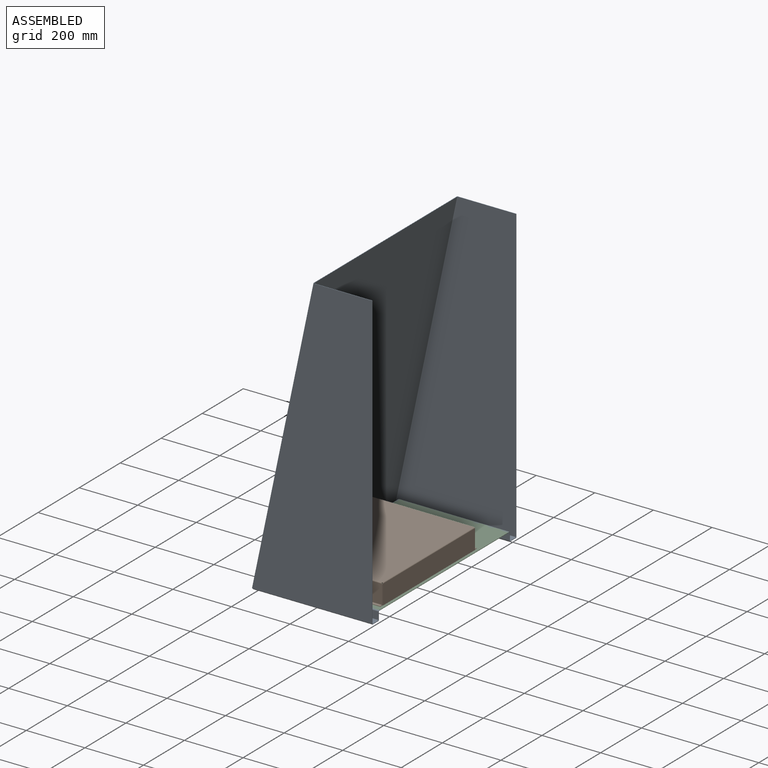
[diagram: assembled view]
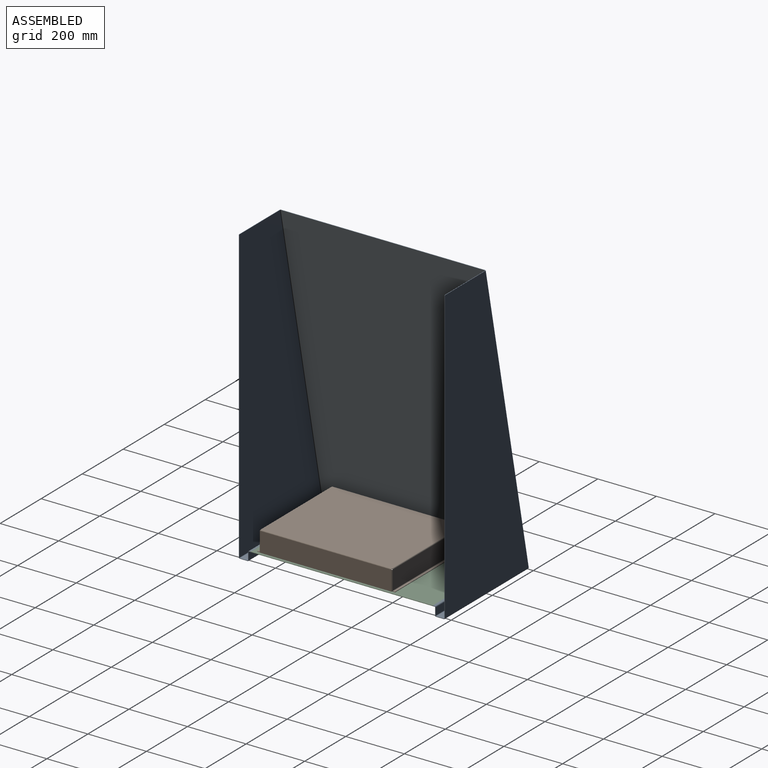
[diagram: assembled view, second angle]
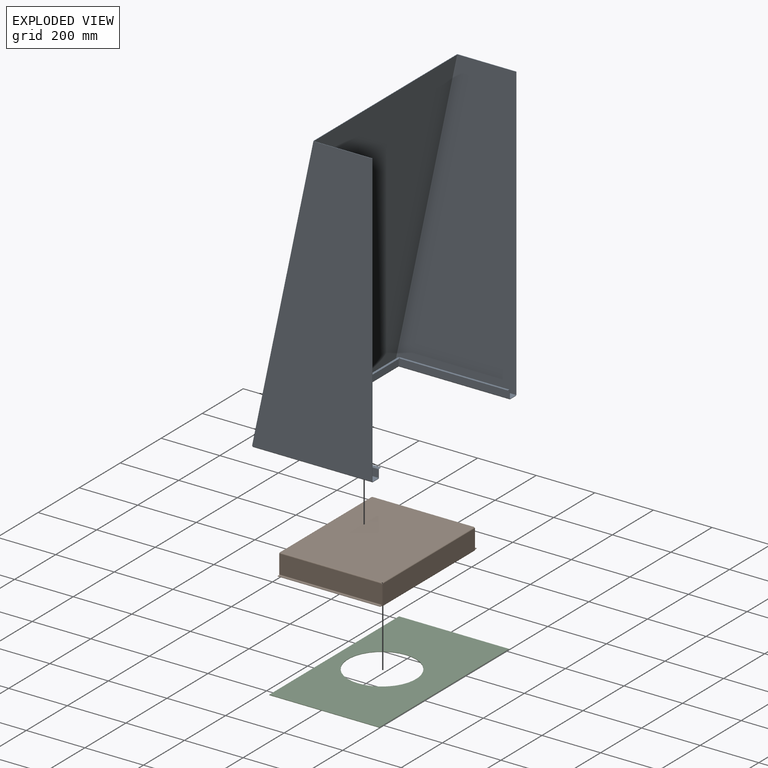
[diagram: exploded view]
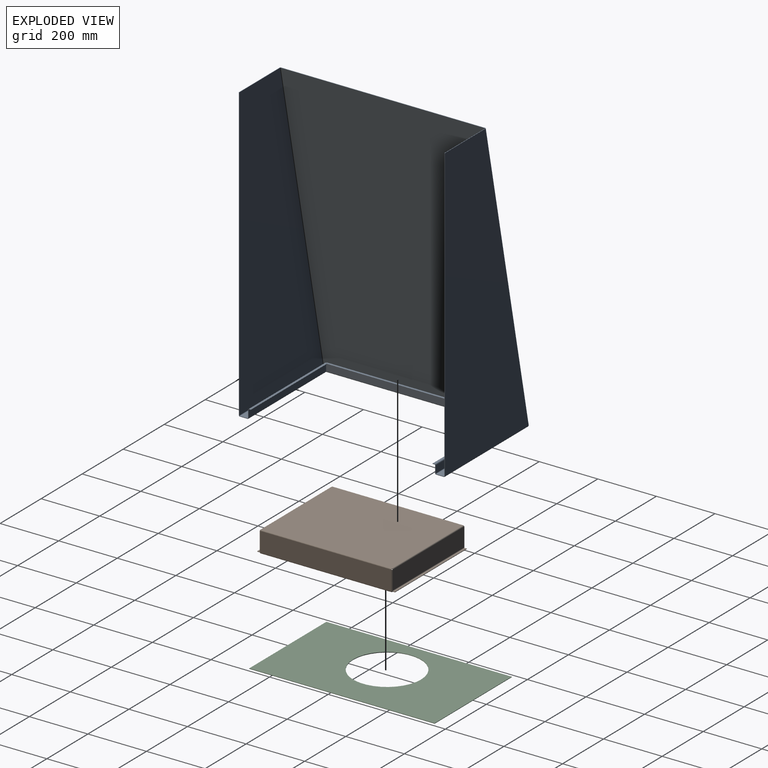
[diagram: exploded view, second angle]
ASSEMBLY  parts=3 mates=2
PART A: 110 faces, bbox 411.2x703.2x1000.4 mm
  f0: plane 1.6x0.07mm, normal (-0.98,0,0.21), area 0.1mm2, adj f1,f2,f3,f48
  f1: plane 1.6x0.34mm, normal (0,0,-1), area 0.5mm2, adj f0,f2,f3,f107
  f2: plane 996.55x408.03mm, normal (0,1,0), area 302150.1mm2, adj f0,f1,f4,f5,f50,f108
  f3: plane 996.55x408.03mm, normal (0,-1,0), area 302150.1mm2, adj f0,f1,f4,f5,f51,f109
  f4: plane 198.37x1.6mm, normal (0,0,1), area 317.4mm2, adj f2,f3,f5,f49
  f5: plane 996.55x1.6mm, normal (1,0,0), area 1594.5mm2, adj f2,f3,f4,f106
  f6: plane 1.6x0.34mm, normal (0,0,-1), area 0.5mm2, adj f7,f8,f11,f80
  f7: plane 996.55x408.03mm, normal (0,1,0), area 302150.1mm2, adj f6,f9,f10,f11,f55,f82
  f8: plane 996.55x408.03mm, normal (0,-1,0), area 302150.1mm2, adj f6,f9,f10,f11,f54,f81
  f9: plane 996.55x1.6mm, normal (1,0,0), area 1594.5mm2, adj f7,f8,f10,f79
  f10: plane 198.37x1.6mm, normal (0,0,1), area 317.4mm2, adj f7,f8,f9,f53
  f11: plane 1.6x0.07mm, normal (-0.98,0,0.21), area 0.1mm2, adj f6,f7,f8,f52
  f12: plane 1.58x0.4mm, normal (0,-1,0), area 0.1mm2, adj f14,f15,f16,f52
  f13: plane 1.57x1.08mm, normal (-0.21,0,-0.98), area 1.7mm2, adj f15,f16,f18,f44
  f14: plane 1.57x1.08mm, normal (-0.21,0,-0.98), area 1.7mm2, adj f12,f15,f16,f45
  f15: plane 996.22x696.8mm, normal (-0.98,0,0.21), area 709362.2mm2, adj f12,f13,f14,f17,f18,f46,f50,f54
  f16: plane 996.22x696.8mm, normal (0.98,0,-0.21), area 709362.2mm2, adj f12,f13,f14,f17,f18,f47,f51,f55
  f17: plane 696.8x1.57mm, normal (0.21,0,0.98), area 1114.9mm2, adj f15,f16,f49,f53
  f18: plane 1.58x0.4mm, normal (0,1,0), area 0.1mm2, adj f13,f15,f16,f48
  f19: plane 2.51x1.6mm, normal (1,0,0), area 4mm2, adj f21,f23,f24,f41
  f20: plane 26.43x26.43mm, normal (0.71,-0.71,0), area 59.8mm2, adj f22,f23,f24,f45
  f21: plane 26.43x26.43mm, normal (0.71,0.71,0), area 59.8mm2, adj f19,f23,f24,f44
  f22: plane 2.51x1.6mm, normal (1,0,0), area 4mm2, adj f20,f23,f24,f40
  f23: plane 694.64x26.43mm, normal (0,0,-1), area 17659.8mm2, adj f19,f20,f21,f22,f42,f46
  f24: plane 694.64x26.43mm, normal (0,0,1), area 17659.8mm2, adj f19,f20,f21,f22,f43,f47
  f25: plane 2.29x1.6mm, normal (0,0,1), area 3.7mm2, adj f26,f27,f29,f37
  f26: plane 636.76x25.2mm, normal (-1,0,0), area 16046.4mm2, adj f25,f28,f29,f30,f38,f43
  f27: plane 636.76x25.2mm, normal (1,0,0), area 16046.4mm2, adj f25,f28,f29,f30,f39,f42
  f28: plane 2.29x1.6mm, normal (0,0,1), area 3.7mm2, adj f26,f27,f30,f36
  f29: plane 25.2x1.6mm, normal (0,-1,0), area 40.3mm2, adj f25,f26,f27,f40
  f30: plane 25.2x1.6mm, normal (0,1,0), area 40.3mm2, adj f26,f27,f28,f41
  f31: plane 6.8x6.8mm, normal (0.71,0.71,0), area 15.4mm2, adj f32,f34,f35,f36
  f32: plane 618.59x1.6mm, normal (1,0,0), area 989.7mm2, adj f31,f33,f34,f35
  f33: plane 6.8x6.8mm, normal (0.71,-0.71,0), area 15.4mm2, adj f32,f34,f35,f37
  f34: plane 632.19x6.8mm, normal (0,0,-1), area 4252.6mm2, adj f31,f32,f33,f39
  f35: plane 632.19x6.8mm, normal (0,0,1), area 4252.6mm2, adj f31,f32,f33,f38
  f36: plane 3.2x3.2mm, normal (0,1,0), area 6mm2, adj f28,f31,f38,f39
  f37: plane 3.2x3.2mm, normal (0,-1,0), area 6mm2, adj f25,f33,f38,f39
  f38: cylinder r=3.2mm len=632.19mm, axis (0,1,0), area 3177.7mm2, adj f26,f35,f36,f37
  f39: cylinder r=1.6mm len=632.19mm, axis (0,1,0), area 1588.9mm2, adj f27,f34,f36,f37
  f40: plane 3.2x3.2mm, normal (0,-1,0), area 6mm2, adj f22,f29,f42,f43
  f41: plane 3.2x3.2mm, normal (0,1,0), area 6mm2, adj f19,f30,f42,f43
  f42: cylinder r=3.2mm len=636.76mm, axis (0,-1,0), area 3200.7mm2, adj f23,f27,f40,f41
  f43: cylinder r=1.6mm len=636.76mm, axis (0,-1,0), area 1600.4mm2, adj f24,f26,f40,f41
  f44: plane 3.86x3.2mm, normal (0,1,0), area 6.8mm2, adj f13,f21,f46,f47
  f45: plane 3.86x3.2mm, normal (0,-1,0), area 6.8mm2, adj f14,f20,f46,f47
  f46: cylinder r=3.2mm len=694.64mm, axis (0,1,0), area 3952.6mm2, adj f15,f23,f44,f45
  f47: cylinder r=1.6mm len=694.64mm, axis (0,1,0), area 1976.3mm2, adj f16,f24,f44,f45
  f48: plane 3.2x3.13mm, normal (-0.21,0,-0.98), area 6mm2, adj f0,f18,f50,f51
  f49: bspline ~3.21x3.2mm, area 6.1mm2, adj f4,f17,f50,f51
  f50: cylinder r=3.2mm len=997.14mm, axis (-0.21,0,-0.98), area 5117.7mm2, adj f2,f15,f48,f49
  f51: cylinder r=1.6mm len=996.81mm, axis (-0.21,0,-0.98), area 2558.8mm2, adj f3,f16,f48,f49
  f52: plane 3.2x3.13mm, normal (-0.21,0,-0.98), area 6mm2, adj f11,f12,f54,f55
  f53: bspline ~3.21x3.2mm, area 6.1mm2, adj f10,f17,f54,f55
  f54: cylinder r=3.2mm len=997.14mm, axis (-0.21,0,-0.98), area 5117.7mm2, adj f8,f15,f52,f53
  f55: cylinder r=1.6mm len=996.81mm, axis (-0.21,0,-0.98), area 2558.8mm2, adj f7,f16,f52,f53
  f56: plane 2.51x1.6mm, normal (0,1,0), area 4mm2, adj f58,f59,f60,f76
  f57: plane 26.8x1.6mm, normal (1,0,0), area 42.9mm2, adj f59,f60,f75,f79
  f58: plane 26.8x26.8mm, normal (-0.71,0.71,0), area 60.6mm2, adj f56,f59,f60,f80
  f59: plane 407.69x26.8mm, normal (0,0,-1), area 10567mm2, adj f56,f57,f58,f77,f81
  f60: plane 407.69x26.8mm, normal (0,0,1), area 10567mm2, adj f56,f57,f58,f78,f82
  f61: plane 378.38x25.2mm, normal (0,1,0), area 9535.2mm2, adj f63,f64,f65,f74,f77
  f62: plane 378.38x25.2mm, normal (0,-1,0), area 9535.2mm2, adj f63,f64,f65,f73,f78
  f63: plane 2.29x1.6mm, normal (0,0,1), area 3.7mm2, adj f61,f62,f65,f72
  f64: plane 25.2x1.6mm, normal (1,0,0), area 40.3mm2, adj f61,f62,f71,f75
  f65: plane 25.2x1.6mm, normal (-1,0,0), area 40.3mm2, adj f61,f62,f63,f76
  f66: plane 6.8x1.6mm, normal (1,0,0), area 10.9mm2, adj f68,f69,f70,f71
  f67: plane 6.8x6.8mm, normal (-0.71,0.71,0), area 15.4mm2, adj f68,f69,f70,f72
  f68: plane 369.29x1.6mm, normal (0,1,0), area 590.9mm2, adj f66,f67,f69,f70
  f69: plane 376.09x6.8mm, normal (0,0,-1), area 2534.3mm2, adj f66,f67,f68,f74
  f70: plane 376.09x6.8mm, normal (0,0,1), area 2534.3mm2, adj f66,f67,f68,f73
  f71: plane 3.2x3.2mm, normal (1,0,0), area 6mm2, adj f64,f66,f73,f74
  f72: plane 3.2x3.2mm, normal (-1,0,0), area 6mm2, adj f63,f67,f73,f74
  f73: cylinder r=3.2mm len=376.09mm, axis (1,0,0), area 1890.4mm2, adj f62,f70,f71,f72
  f74: cylinder r=1.6mm len=376.09mm, axis (1,0,0), area 945.2mm2, adj f61,f69,f71,f72
  f75: plane 3.2x3.2mm, normal (1,0,0), area 6mm2, adj f57,f64,f77,f78
  f76: plane 3.2x3.2mm, normal (-1,0,0), area 6mm2, adj f56,f65,f77,f78
  f77: cylinder r=3.2mm len=378.38mm, axis (1,0,0), area 1901.9mm2, adj f59,f61,f75,f76
  f78: cylinder r=1.6mm len=378.38mm, axis (1,0,0), area 951mm2, adj f60,f62,f75,f76
  f79: plane 3.2x3.2mm, normal (1,0,0), area 6mm2, adj f9,f57,f81,f82
  f80: plane 3.2x3.2mm, normal (-1,0,0), area 6mm2, adj f6,f58,f81,f82
  f81: cylinder r=3.2mm len=407.69mm, axis (1,0,0), area 2049.3mm2, adj f8,f59,f79,f80
  f82: cylinder r=1.6mm len=407.69mm, axis (1,0,0), area 1024.6mm2, adj f7,f60,f79,f80
  f83: plane 26.8x1.6mm, normal (1,0,0), area 42.9mm2, adj f86,f87,f103,f106
  f84: plane 2.51x1.6mm, normal (0,-1,0), area 4mm2, adj f85,f86,f87,f102
  f85: plane 26.8x26.8mm, normal (-0.71,-0.71,0), area 60.6mm2, adj f84,f86,f87,f107
  f86: plane 407.69x26.8mm, normal (0,0,-1), area 10567mm2, adj f83,f84,f85,f104,f108
  f87: plane 407.69x26.8mm, normal (0,0,1), area 10567mm2, adj f83,f84,f85,f105,f109
  f88: plane 2.29x1.6mm, normal (0,0,1), area 3.7mm2, adj f89,f90,f92,f99
  f89: plane 378.38x25.2mm, normal (0,1,0), area 9535.2mm2, adj f88,f91,f92,f100,f105
  f90: plane 378.38x25.2mm, normal (0,-1,0), area 9535.2mm2, adj f88,f91,f92,f101,f104
  f91: plane 25.2x1.6mm, normal (1,0,0), area 40.3mm2, adj f89,f90,f98,f103
  f92: plane 25.2x1.6mm, normal (-1,0,0), area 40.3mm2, adj f88,f89,f90,f102
  f93: plane 6.8x1.6mm, normal (1,0,0), area 10.9mm2, adj f94,f96,f97,f98
  f94: plane 369.29x1.6mm, normal (0,-1,0), area 590.9mm2, adj f93,f95,f96,f97
  f95: plane 6.8x6.8mm, normal (-0.71,-0.71,0), area 15.4mm2, adj f94,f96,f97,f99
  f96: plane 376.09x6.8mm, normal (0,0,-1), area 2534.3mm2, adj f93,f94,f95,f101
  f97: plane 376.09x6.8mm, normal (0,0,1), area 2534.3mm2, adj f93,f94,f95,f100
  f98: plane 3.2x3.2mm, normal (1,0,0), area 6mm2, adj f91,f93,f100,f101
  f99: plane 3.2x3.2mm, normal (-1,0,0), area 6mm2, adj f88,f95,f100,f101
  f100: cylinder r=3.2mm len=376.09mm, axis (1,0,0), area 1890.4mm2, adj f89,f97,f98,f99
  f101: cylinder r=1.6mm len=376.09mm, axis (1,0,0), area 945.2mm2, adj f90,f96,f98,f99
  f102: plane 3.2x3.2mm, normal (-1,0,0), area 6mm2, adj f84,f92,f104,f105
  f103: plane 3.2x3.2mm, normal (1,0,0), area 6mm2, adj f83,f91,f104,f105
  f104: cylinder r=3.2mm len=378.38mm, axis (-1,0,0), area 1901.9mm2, adj f86,f90,f102,f103
  f105: cylinder r=1.6mm len=378.38mm, axis (-1,0,0), area 951mm2, adj f87,f89,f102,f103
  f106: plane 3.2x3.2mm, normal (1,0,0), area 6mm2, adj f5,f83,f108,f109
  f107: plane 3.2x3.2mm, normal (-1,0,0), area 6mm2, adj f1,f85,f108,f109
  f108: cylinder r=3.2mm len=407.69mm, axis (1,0,0), area 2049.3mm2, adj f2,f86,f106,f107
  f109: cylinder r=1.6mm len=407.69mm, axis (1,0,0), area 1024.6mm2, adj f3,f87,f106,f107
PART B: 92 faces, bbox 470x353.2x73.2 mm
  f0: plane 8.38x1.6mm, normal (-1,0,0), area 13.4mm2, adj f1,f3,f4,f38
  f1: plane 447.98x1.6mm, normal (0,1,0), area 716.8mm2, adj f0,f2,f3,f4
  f2: plane 8.38x1.6mm, normal (1,0,0), area 13.4mm2, adj f1,f3,f4,f39
  f3: plane 447.98x8.38mm, normal (0,0,-1), area 3754.1mm2, adj f0,f1,f2,f40
  f4: plane 447.98x8.38mm, normal (0,0,1), area 3754.1mm2, adj f0,f1,f2,f41
  f5: plane 8.28x1.6mm, normal (1,0,0), area 13.3mm2, adj f6,f8,f9,f20
  f6: plane 447.98x1.6mm, normal (0,-1,0), area 716.8mm2, adj f5,f7,f8,f9
  f7: plane 8.28x1.6mm, normal (-1,0,0), area 13.3mm2, adj f6,f8,f9,f19
  f8: plane 447.98x8.28mm, normal (0,0,-1), area 3711.1mm2, adj f5,f6,f7,f21
  f9: plane 447.98x8.28mm, normal (0,0,1), area 3711.1mm2, adj f5,f6,f7,f22
  f10: plane 446.8x346.8mm, normal (0,0,1), area 154950.2mm2, adj f25,f36,f61,f90
  f11: plane 446.8x346.8mm, normal (0,0,-1), area 154950.2mm2, adj f26,f37,f62,f91
  f12: plane 1.6x1.58mm, normal (0,0,1), area 2.5mm2, adj f13,f14,f15,f23
  f13: plane 66.8x1.6mm, normal (-1,0,0), area 106.9mm2, adj f12,f14,f15,f18
  f14: plane 449.96x66.8mm, normal (0,-1,0), area 30057.3mm2, adj f12,f13,f16,f17,f18,f22,f26
  f15: plane 449.96x66.8mm, normal (0,1,0), area 30057.3mm2, adj f12,f13,f16,f17,f18,f21,f25
  f16: plane 66.8x1.6mm, normal (1,0,0), area 106.9mm2, adj f14,f15,f17,f20
  f17: plane 1.6x1.58mm, normal (0,0,1), area 2.5mm2, adj f14,f15,f16,f24
  f18: plane 1.6x0.98mm, normal (0,0,-1), area 1.6mm2, adj f13,f14,f15,f19
  f19: plane 3.2x3.2mm, normal (-1,0,0), area 6mm2, adj f7,f18,f21,f22
  f20: bspline ~3.2x3.2mm, area 6.2mm2, adj f5,f16,f21,f22
  f21: cylinder r=3.2mm len=448.98mm, axis (-1,0,0), area 2254.3mm2, adj f8,f15,f19,f20
  f22: cylinder r=1.6mm len=448.98mm, axis (-1,0,0), area 1127.2mm2, adj f9,f14,f19,f20
  f23: plane 3.2x3.2mm, normal (-1,0,0), area 6mm2, adj f12,f25,f26,f89
  f24: plane 3.2x3.2mm, normal (1,0,0), area 6mm2, adj f17,f25,f26,f60
  f25: cylinder r=3.2mm len=446.8mm, axis (-1,0,0), area 2245.9mm2, adj f10,f15,f23,f24
  f26: cylinder r=1.6mm len=446.8mm, axis (-1,0,0), area 1122.9mm2, adj f11,f14,f23,f24
  f27: plane 1.6x1.58mm, normal (0,0,1), area 2.5mm2, adj f28,f29,f30,f35
  f28: plane 66.8x1.6mm, normal (1,0,0), area 106.9mm2, adj f27,f29,f30,f32
  f29: plane 449.96x66.8mm, normal (0,1,0), area 30057.3mm2, adj f27,f28,f31,f32,f33,f37,f41
  f30: plane 449.96x66.8mm, normal (0,-1,0), area 30057.3mm2, adj f27,f28,f31,f32,f33,f36,f40
  f31: plane 66.8x1.6mm, normal (-1,0,0), area 106.9mm2, adj f29,f30,f33,f38
  f32: plane 1.6x0.98mm, normal (0,0,-1), area 1.6mm2, adj f28,f29,f30,f39
  f33: plane 1.6x1.58mm, normal (0,0,1), area 2.5mm2, adj f29,f30,f31,f34
  f34: plane 3.2x3.2mm, normal (-1,0,0), area 6mm2, adj f33,f36,f37,f88
  f35: plane 3.2x3.2mm, normal (1,0,0), area 6mm2, adj f27,f36,f37,f59
  f36: cylinder r=3.2mm len=446.8mm, axis (-1,0,0), area 2245.9mm2, adj f10,f30,f34,f35
  f37: cylinder r=1.6mm len=446.8mm, axis (-1,0,0), area 1122.9mm2, adj f11,f29,f34,f35
  f38: bspline ~3.2x3.2mm, area 6.2mm2, adj f0,f31,f40,f41
  f39: plane 3.2x3.2mm, normal (1,0,0), area 6mm2, adj f2,f32,f40,f41
  f40: cylinder r=3.2mm len=448.98mm, axis (-1,0,0), area 2254.3mm2, adj f3,f30,f38,f39
  f41: cylinder r=1.6mm len=448.98mm, axis (-1,0,0), area 1127.2mm2, adj f4,f29,f38,f39
  f42: plane 1.6x1mm, normal (-1,0,0), area 1.6mm2, adj f43,f44,f45,f64
  f43: plane 6.8x1.6mm, normal (0,-1,0), area 10.9mm2, adj f42,f44,f45,f48
  f44: plane 350x6.8mm, normal (0,0,-1), area 2380mm2, adj f42,f43,f46,f47,f48,f65
  f45: plane 350x6.8mm, normal (0,0,1), area 2380mm2, adj f42,f43,f46,f47,f48,f66
  f46: plane 6.8x1.6mm, normal (0,1,0), area 10.9mm2, adj f44,f45,f47,f48
  f47: plane 1.6x1mm, normal (-1,0,0), area 1.6mm2, adj f44,f45,f46,f63
  f48: plane 350x1.6mm, normal (1,0,0), area 560mm2, adj f43,f44,f45,f46
  f49: plane 1.6x1.58mm, normal (0,0,1), area 2.5mm2, adj f54,f57,f58,f60
  f50: plane 1.6x0.98mm, normal (0,0,-1), area 1.6mm2, adj f51,f56,f57,f58
  f51: plane 4.2x1.6mm, normal (0,1,0), area 3.6mm2, adj f50,f57,f58,f65
  f52: plane 4.2x1.6mm, normal (0,-1,0), area 3.6mm2, adj f53,f57,f58,f65
  f53: plane 1.6x0.98mm, normal (0,0,-1), area 1.6mm2, adj f52,f54,f57,f58
  f54: plane 68.3x1.6mm, normal (0,1,0), area 109.3mm2, adj f49,f53,f57,f58
  f55: plane 1.6x1.58mm, normal (0,0,1), area 2.5mm2, adj f56,f57,f58,f59
  f56: plane 68.3x1.6mm, normal (0,-1,0), area 109.3mm2, adj f50,f55,f57,f58
  f57: plane 349.96x68.3mm, normal (1,0,0), area 22440.7mm2, adj f49,f50,f51,f52,f53,f54,f55,f56
  f58: plane 349.96x68.3mm, normal (-1,0,0), area 22440.7mm2, adj f49,f50,f51,f52,f53,f54,f55,f56
  f59: plane 3.2x3.2mm, normal (0,-1,0), area 6mm2, adj f35,f55,f61,f62
  f60: plane 3.2x3.2mm, normal (0,1,0), area 6mm2, adj f24,f49,f61,f62
  f61: cylinder r=3.2mm len=346.8mm, axis (0,-1,0), area 1743.2mm2, adj f10,f57,f59,f60
  f62: cylinder r=1.6mm len=346.8mm, axis (0,-1,0), area 871.6mm2, adj f11,f58,f59,f60
  f63: plane 3.2x1.6mm, normal (0,1,0), area 2.9mm2, adj f47,f57,f65,f66
  f64: plane 3.2x1.6mm, normal (0,-1,0), area 2.9mm2, adj f42,f57,f65,f66
  f65: cylinder r=3.2mm len=348mm, axis (0,-1,0), area 1749.2mm2, adj f44,f51,f52,f58,f63,f64
  f66: cylinder r=1.6mm len=348mm, axis (0,-1,0), area 874.6mm2, adj f45,f57,f63,f64
  f67: plane 1.6x1mm, normal (1,0,0), area 1.6mm2, adj f68,f69,f70,f85
  f68: plane 6.8x1.6mm, normal (0,1,0), area 10.9mm2, adj f67,f69,f70,f72
  f69: plane 350x6.8mm, normal (0,0,-1), area 2380mm2, adj f67,f68,f71,f72,f73,f86
  f70: plane 350x6.8mm, normal (0,0,1), area 2380mm2, adj f67,f68,f71,f72,f73,f87
  f71: plane 6.8x1.6mm, normal (0,-1,0), area 10.9mm2, adj f69,f70,f72,f73
  f72: plane 350x1.6mm, normal (-1,0,0), area 560mm2, adj f68,f69,f70,f71
  f73: plane 1.6x1mm, normal (1,0,0), area 1.6mm2, adj f69,f70,f71,f84
  f74: plane 1.6x1.58mm, normal (0,0,1), area 2.5mm2, adj f79,f82,f83,f88
  f75: plane 1.6x0.98mm, normal (0,0,-1), area 1.6mm2, adj f76,f81,f82,f83
  f76: plane 4.2x1.6mm, normal (0,-1,0), area 3.6mm2, adj f75,f82,f83,f86
  f77: plane 4.2x1.6mm, normal (0,1,0), area 3.6mm2, adj f78,f82,f83,f86
  f78: plane 1.6x0.98mm, normal (0,0,-1), area 1.6mm2, adj f77,f79,f82,f83
  f79: plane 68.3x1.6mm, normal (0,-1,0), area 109.3mm2, adj f74,f78,f82,f83
  f80: plane 1.6x1.58mm, normal (0,0,1), area 2.5mm2, adj f81,f82,f83,f89
  f81: plane 68.3x1.6mm, normal (0,1,0), area 109.3mm2, adj f75,f80,f82,f83
  f82: plane 349.96x68.3mm, normal (-1,0,0), area 22440.7mm2, adj f74,f75,f76,f77,f78,f79,f80,f81
  f83: plane 349.96x68.3mm, normal (1,0,0), area 22440.7mm2, adj f74,f75,f76,f77,f78,f79,f80,f81
  f84: plane 3.2x1.6mm, normal (0,-1,0), area 2.9mm2, adj f73,f82,f86,f87
  f85: plane 3.2x1.6mm, normal (0,1,0), area 2.9mm2, adj f67,f82,f86,f87
  f86: cylinder r=3.2mm len=348mm, axis (0,-1,0), area 1749.2mm2, adj f69,f76,f77,f83,f84,f85
  f87: cylinder r=1.6mm len=348mm, axis (0,-1,0), area 874.6mm2, adj f70,f82,f84,f85
  f88: plane 3.2x3.2mm, normal (0,-1,0), area 6mm2, adj f34,f74,f90,f91
  f89: plane 3.2x3.2mm, normal (0,1,0), area 6mm2, adj f23,f80,f90,f91
  f90: cylinder r=3.2mm len=346.8mm, axis (0,-1,0), area 1743.2mm2, adj f10,f82,f88,f89
  f91: cylinder r=1.6mm len=346.8mm, axis (0,-1,0), area 871.6mm2, adj f11,f83,f88,f89
PART C: 7 faces, bbox 633x376x1.6 mm
  f0: plane 376x1.6mm, normal (1,0,0), area 601.6mm2, adj f1,f4,f5,f6
  f1: plane 633x1.6mm, normal (0,1,0), area 1012.8mm2, adj f0,f2,f5,f6
  f2: plane 376x1.6mm, normal (-1,0,0), area 601.6mm2, adj f1,f4,f5,f6
  f3: cylinder r=116mm len=232mm, axis (0,0,1), area 1166.2mm2, adj f5,f6
  f4: plane 633x1.6mm, normal (0,-1,0), area 1012.8mm2, adj f0,f2,f5,f6
  f5: plane 633x376mm, normal (0,0,1), area 195734.7mm2, adj f0,f1,f2,f3,f4
  f6: plane 633x376mm, normal (0,0,-1), area 195734.7mm2, adj f0,f1,f2,f3,f4
PLACE A t=(-577.33,62.61,273.3)mm
PLACE B rot(axis=(0,0,-1),90deg) t=(-928.43,-223.59,302.2)mm
PLACE C rot(axis=(0,0,-1),90deg) t=(-577.43,379.41,281.7)mm
MATE planar B.f44 <-> C.f5  axis (0,0,-1) through (-938.43,-233.59,303.3)mm
MATE planar C.f6 <-> A.f96  axis (0,0,-1) through (-953.43,379.41,301.7)mm
